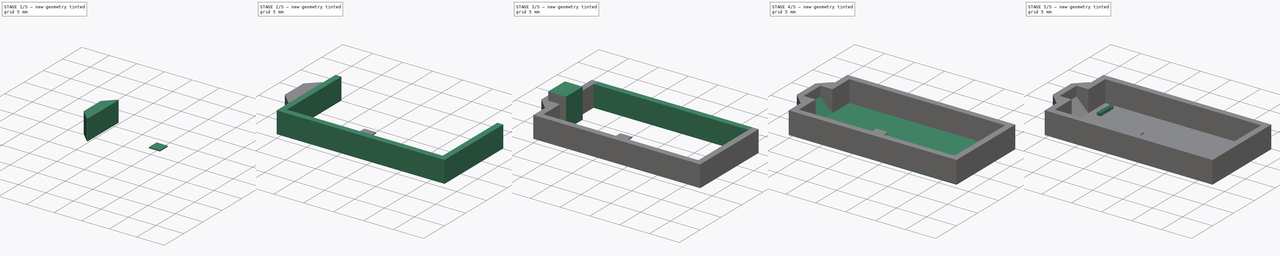
[diagram: build sequence overview — one tinted view per stage of 5, left to right]
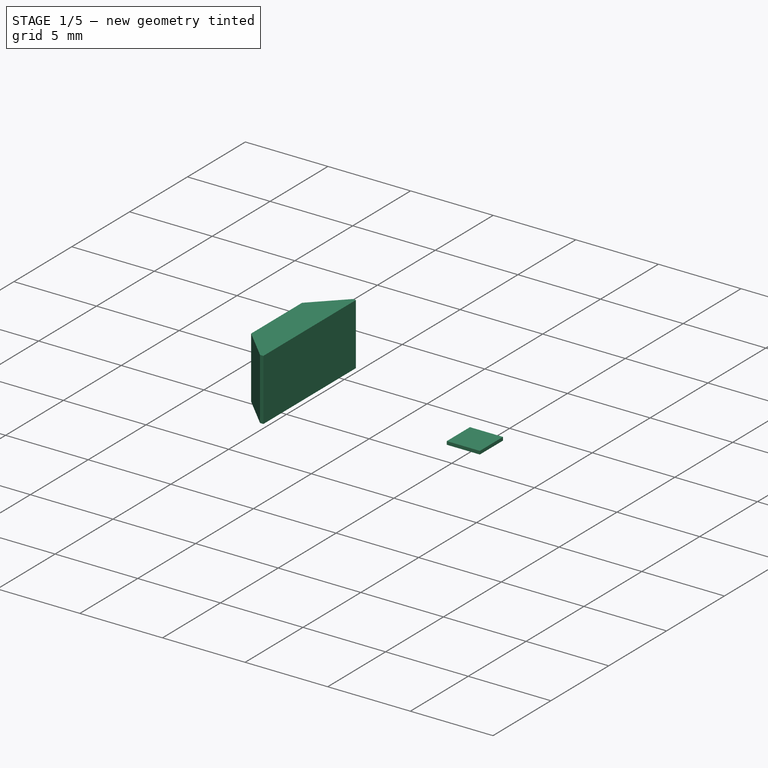
[diagram: stage 1 of 5 — iso view after this stage's code; geometry added in this stage tinted green]
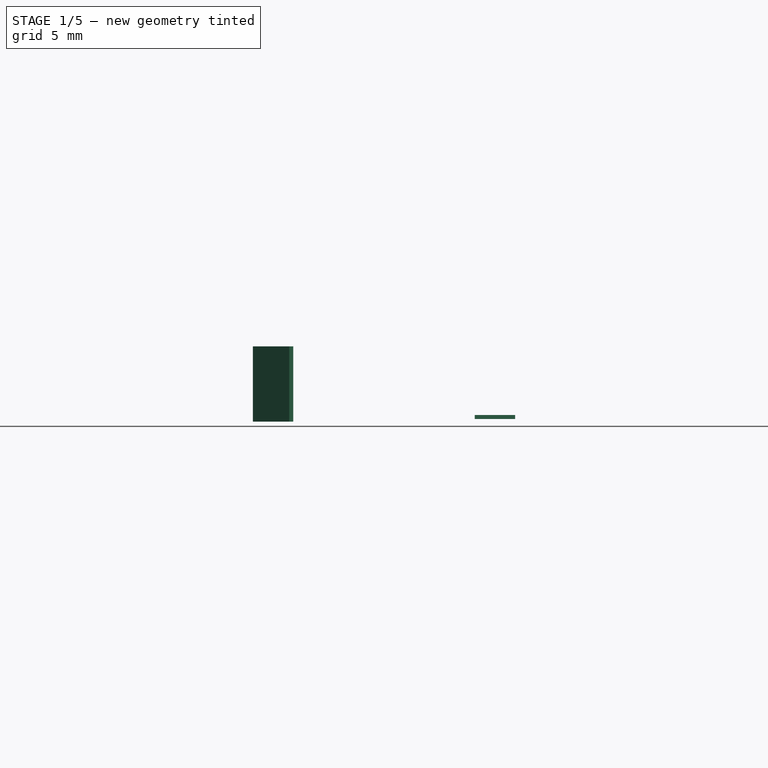
[diagram: stage 1 of 5 — front view after this stage's code; geometry added in this stage tinted green]
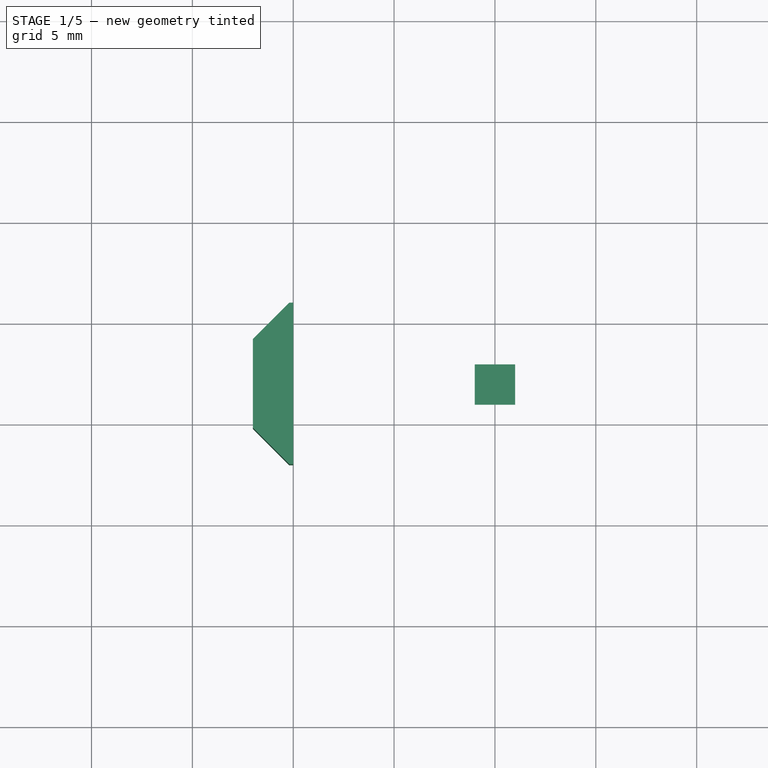
[diagram: stage 1 of 5 — top view after this stage's code; geometry added in this stage tinted green]
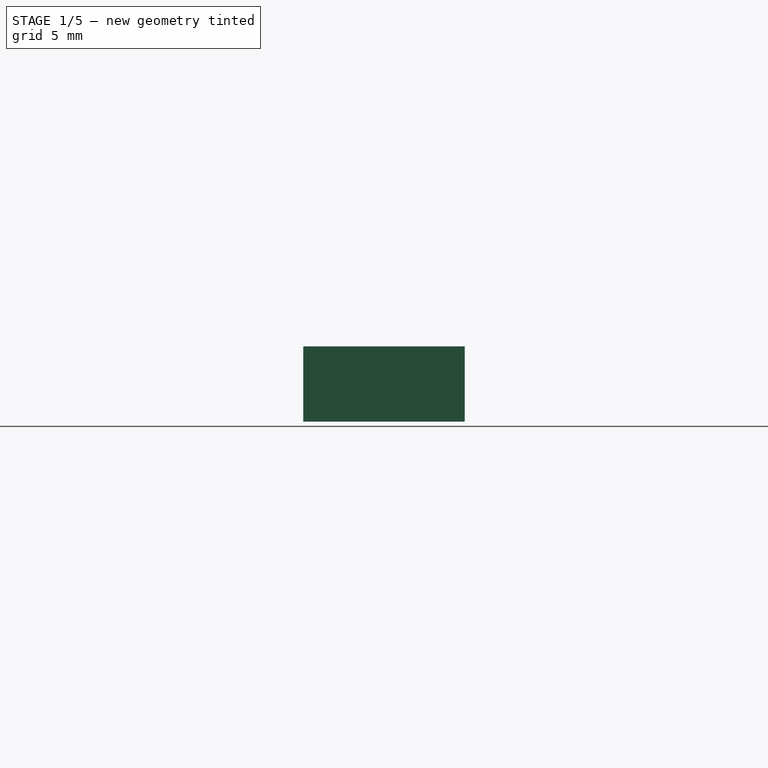
[diagram: stage 1 of 5 — right view after this stage's code; geometry added in this stage tinted green]
FCSTD DOCUMENT  (FreeCAD 0.16R6706 (Git))
Label: Maskless_Small_WithWalls_FreeCAD_Template_v3
License: All rights reserved
LicenseURL: http://en.wikipedia.org/wiki/All_rights_reserved
objects: Sketcher::SketchObject×5, PartDesign::Pad×5, Part::MultiFuse×4, Part::Box×3, Part::Chamfer×2, Part::Part2DObjectPython×1, Part::Extrusion×1, Part::Cut×1
note: 27 computed .brp shape members not serialized (recipe doc carries the construction recipe); baked Part::Feature solids carry a one-line shape summary decoded from their .brp

FEATURE [Part::Box] Box002  label="Cube002"
  Height = 3.725
  Length = 2
  Placement = pos=(-2,3,0) rot=(0,0,1;0rad)
  Width = 8
FEATURE [Part::Chamfer] Chamfer001
  Base = -> Box002
  Edges = 2 edges r=1.8: [Edge1,Edge3]
FEATURE [PartDesign::Pad] Pad  label="Padded Design"
  Length = 0.2
  Length2 = 100
  Placement = pos=(0,0,0.125) rot=(0,0,1;0rad)
  Sketch = -> Sketch007
  Type = 0
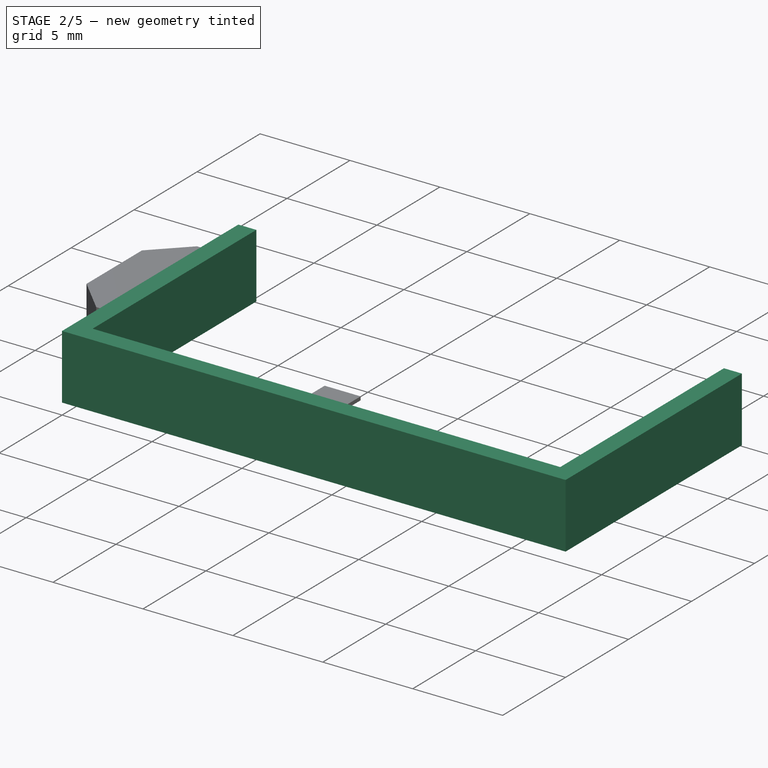
[diagram: stage 2 of 5 — iso view after this stage's code; geometry added in this stage tinted green]
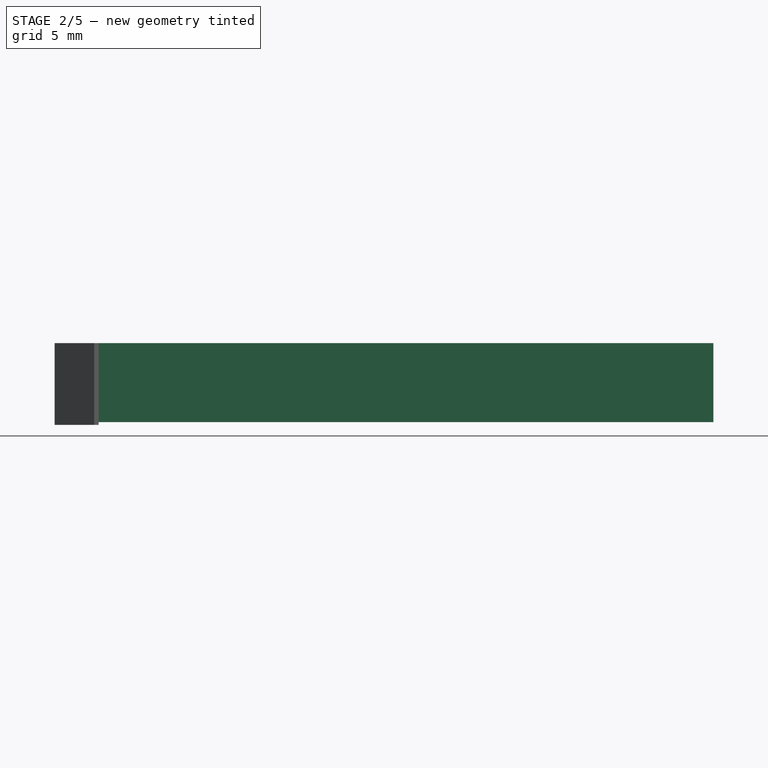
[diagram: stage 2 of 5 — front view after this stage's code; geometry added in this stage tinted green]
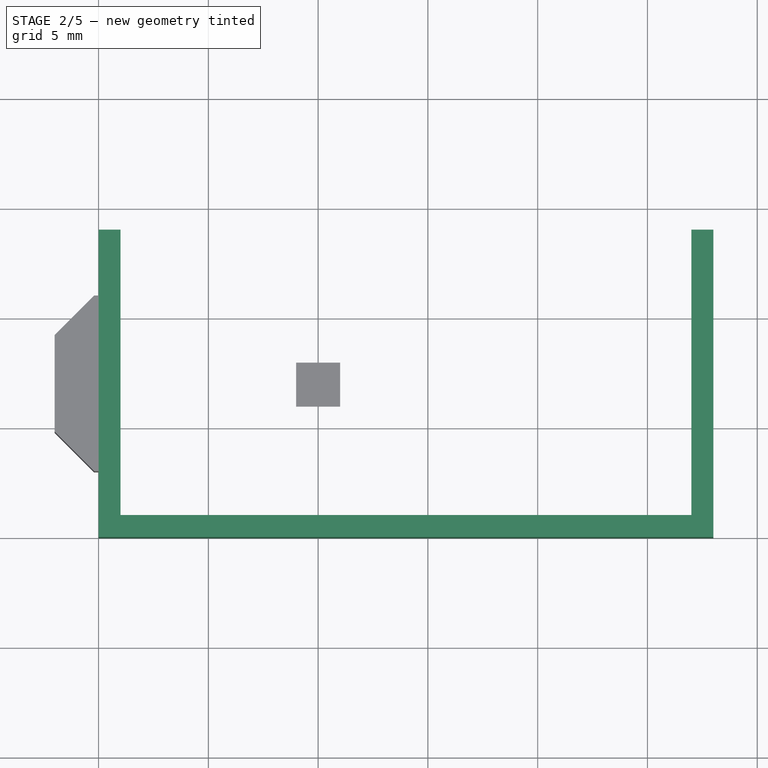
[diagram: stage 2 of 5 — top view after this stage's code; geometry added in this stage tinted green]
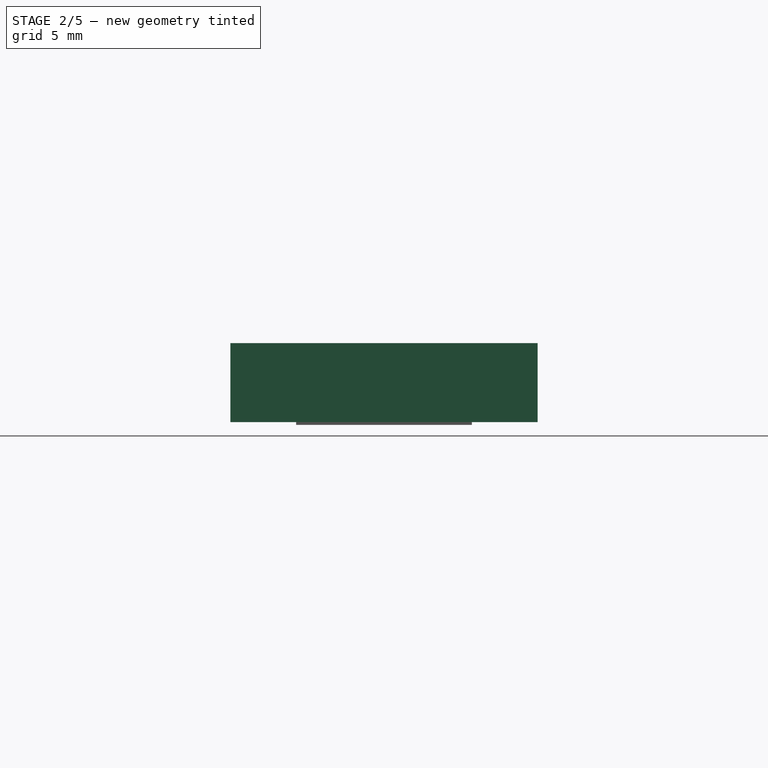
[diagram: stage 2 of 5 — right view after this stage's code; geometry added in this stage tinted green]
FEATURE [PartDesign::Pad] Pad004
  Length = 3.6
  Length2 = 100
  Placement = pos=(0,0,0.125) rot=(0,0,1;0rad)
  Sketch = -> Sketch004
  Type = 0
FEATURE [PartDesign::Pad] Pad005
  Length = 3.6
  Length2 = 100
  Placement = pos=(0,0,0.125) rot=(0,0,1;0rad)
  Sketch = -> Sketch005
  Type = 0
FEATURE [PartDesign::Pad] Pad006
  Length = 3.6
  Length2 = 100
  Placement = pos=(0,0,0.125) rot=(0,0,1;0rad)
  Sketch = -> Sketch006
  Type = 0
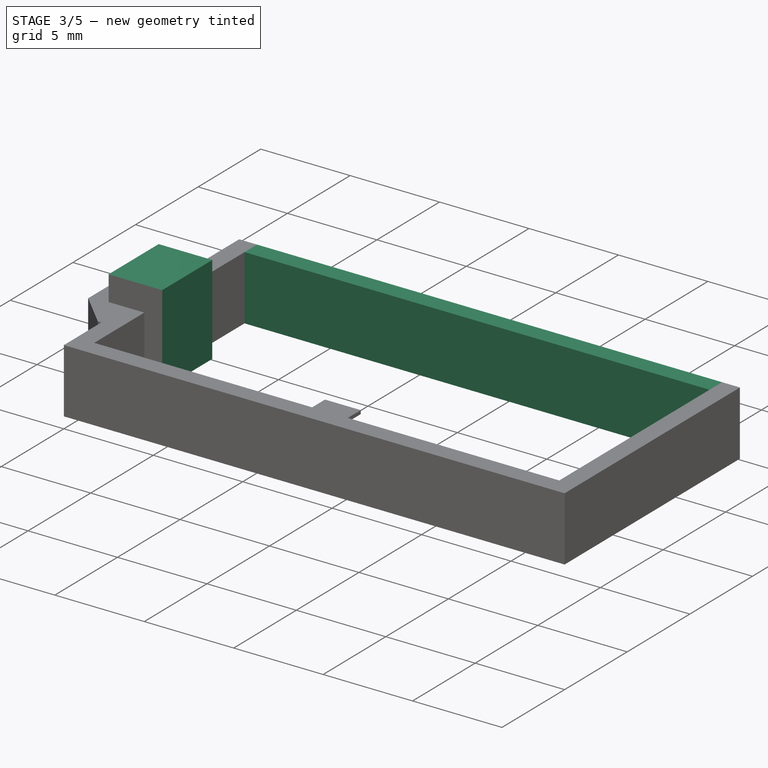
[diagram: stage 3 of 5 — iso view after this stage's code; geometry added in this stage tinted green]
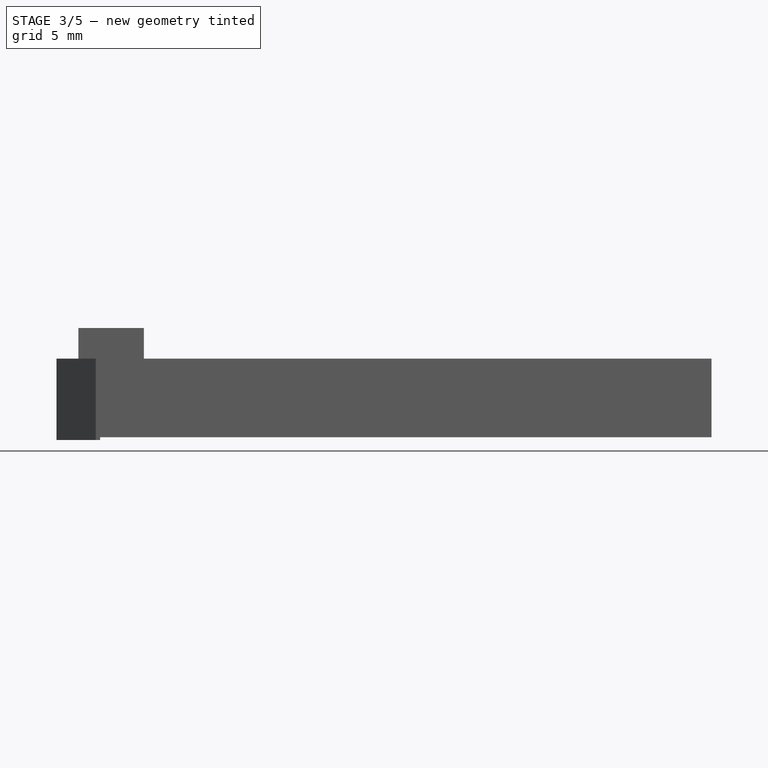
[diagram: stage 3 of 5 — front view after this stage's code; geometry added in this stage tinted green]
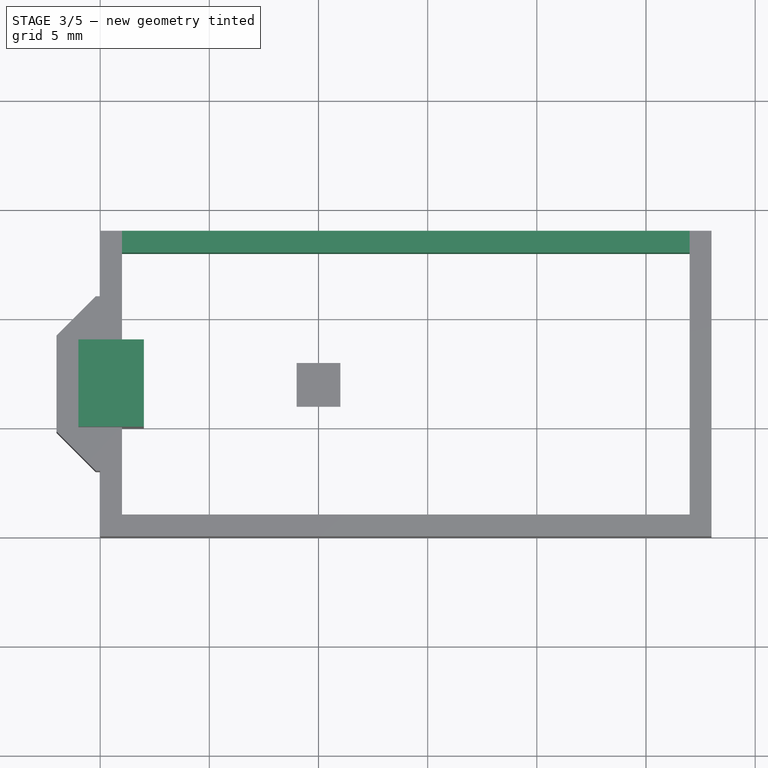
[diagram: stage 3 of 5 — top view after this stage's code; geometry added in this stage tinted green]
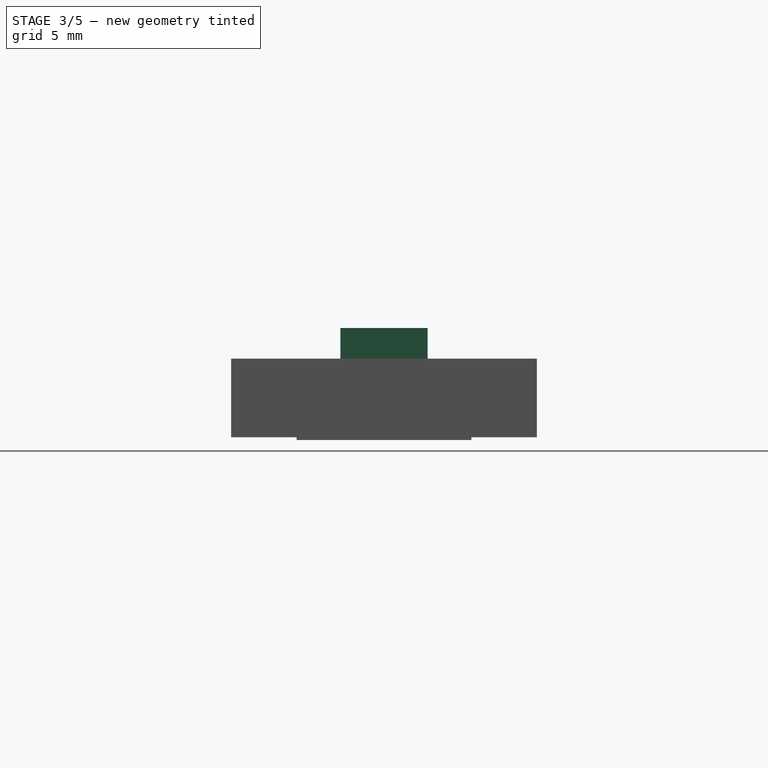
[diagram: stage 3 of 5 — right view after this stage's code; geometry added in this stage tinted green]
FEATURE [Sketcher::SketchObject] Sketch003
  Placement = pos=(0,0,0.125) rot=(0,0,1;0rad)
  sketch-geometry (4):
    g0: LineSegment StartX=0 StartY=13 StartZ=0 EndX=28 EndY=13 EndZ=0
    g1: LineSegment StartX=28 StartY=13 StartZ=0 EndX=28 EndY=14 EndZ=0
    g2: LineSegment StartX=28 StartY=14 StartZ=0 EndX=0 EndY=14 EndZ=0
    g3: LineSegment StartX=0 StartY=14 StartZ=0 EndX=0 EndY=13 EndZ=0
  constraints (12):
    c: Coincident(g0,g1)
    c: Coincident(g1,g2)
    c: Coincident(g2,g3)
    c: Coincident(g3,g0)
    c: Horizontal(g0)
    c: Horizontal(g2)
    c: Vertical(g1)
    c: Vertical(g3)
    c: PointOnObject(g0,g-2)
    c: Distance(g3) = 1
    c: Distance(g0) = 28
    c: DistanceY(g2) = 14
FEATURE [Sketcher::SketchObject] Sketch004
  Placement = pos=(0,0,0.125) rot=(0,0,1;0rad)
  sketch-geometry (4):
    g0: LineSegment StartX=0 StartY=0 StartZ=0 EndX=1 EndY=0 EndZ=0
    g1: LineSegment StartX=1 StartY=0 StartZ=0 EndX=1 EndY=14 EndZ=0
    g2: LineSegment StartX=1 StartY=14 StartZ=0 EndX=0 EndY=14 EndZ=0
    g3: LineSegment StartX=0 StartY=14 StartZ=0 EndX=0 EndY=0 EndZ=0
  constraints (12):
    c: Coincident(g0,g1)
    c: Horizontal(g0)
    c: Horizontal(g2)
    c: Vertical(g1)
    c: PointOnObject(g0,g-2)
    c: Coincident(g1,g2)
    c: DistanceX(g-1,g2) = 0
    c: Coincident(g3,g2)
    c: Coincident(g3,g0)
    c: DistanceY(g2) = 14
    c: DistanceY(g0) = 0
    c: DistanceX(g0,g0) = 1
FEATURE [Sketcher::SketchObject] Sketch005
  Placement = pos=(0,0,0.125) rot=(0,0,1;0rad)
  sketch-geometry (4):
    g0: LineSegment StartX=0 StartY=1 StartZ=0 EndX=28 EndY=1 EndZ=0
    g1: LineSegment StartX=28 StartY=0 StartZ=0 EndX=0 EndY=0 EndZ=0
    g2: LineSegment StartX=0 StartY=0 StartZ=0 EndX=0 EndY=1 EndZ=0
    g3: LineSegment StartX=28 StartY=0 StartZ=0 EndX=28 EndY=1 EndZ=0
  constraints (12):
    c: Coincident(g1,g2)
    c: Coincident(g2,g0)
    c: Horizontal(g0)
    c: Horizontal(g1)
    c: Vertical(g2)
    c: Distance(g2) = 1
    c: DistanceX(g0) = 28
    c: Coincident(g3,g1)
    c: Coincident(g3,g0)
    c: Vertical(g3)
    c: DistanceX(g0) = 0
    c: DistanceY(g1) = 0
FEATURE [Sketcher::SketchObject] Sketch006
  Placement = pos=(0,0,0.125) rot=(0,0,1;0rad)
  sketch-geometry (4):
    g0: LineSegment StartX=28 StartY=0 StartZ=0 EndX=27 EndY=0 EndZ=0
    g1: LineSegment StartX=27 StartY=0 StartZ=0 EndX=27 EndY=14 EndZ=0
    g2: LineSegment StartX=27 StartY=14 StartZ=0 EndX=28 EndY=14 EndZ=0
    g3: LineSegment StartX=28 StartY=14 StartZ=0 EndX=28 EndY=0 EndZ=0
  constraints (12):
    c: Coincident(g0,g1)
    c: Coincident(g1,g2)
    c: Coincident(g2,g3)
    c: Coincident(g3,g0)
    c: Horizontal(g0)
    c: Horizontal(g2)
    c: Vertical(g1)
    c: Vertical(g3)
    c: DistanceY(g0) = 0
    c: Distance(g0) = 1
    c: DistanceX(g0) = 28
    c: DistanceY(g2) = 14
FEATURE [PartDesign::Pad] Pad003
  Length = 3.6
  Length2 = 100
  Placement = pos=(0,0,0.125) rot=(0,0,1;0rad)
  Sketch = -> Sketch003
  Type = 0
FEATURE [Part::MultiFuse] Fusion001
  Shapes = -> [Pad003,Pad004,Pad005,Pad006]
FEATURE [Part::Box] Box001  label="Cube001"
  Height = 5
  Length = 3
  Placement = pos=(-1,5,0.125) rot=(0,0,1;0rad)
  Width = 4
FEATURE [Part::MultiFuse] Fusion
  Shapes = -> [Fusion001,Chamfer001]
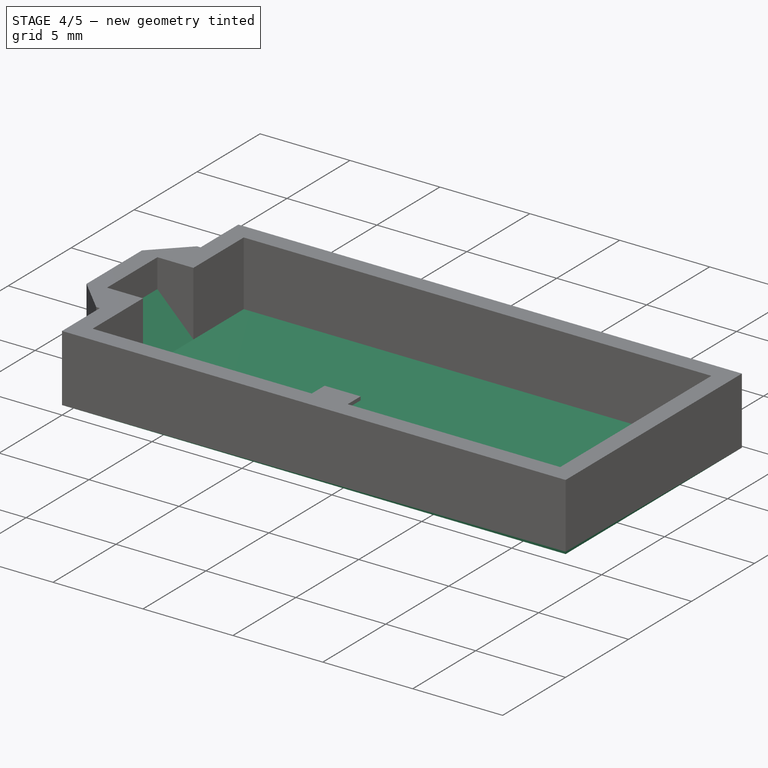
[diagram: stage 4 of 5 — iso view after this stage's code; geometry added in this stage tinted green]
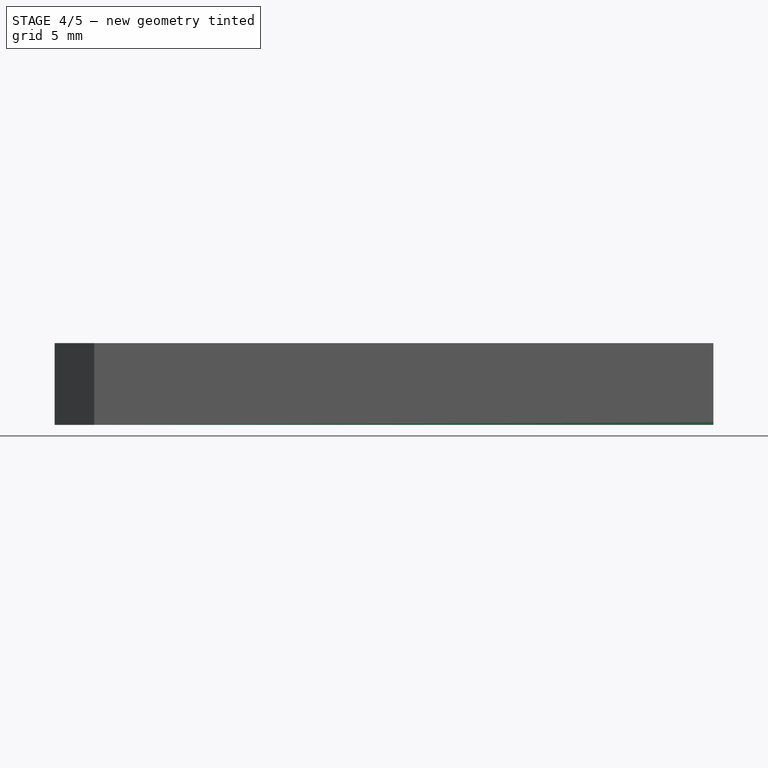
[diagram: stage 4 of 5 — front view after this stage's code; geometry added in this stage tinted green]
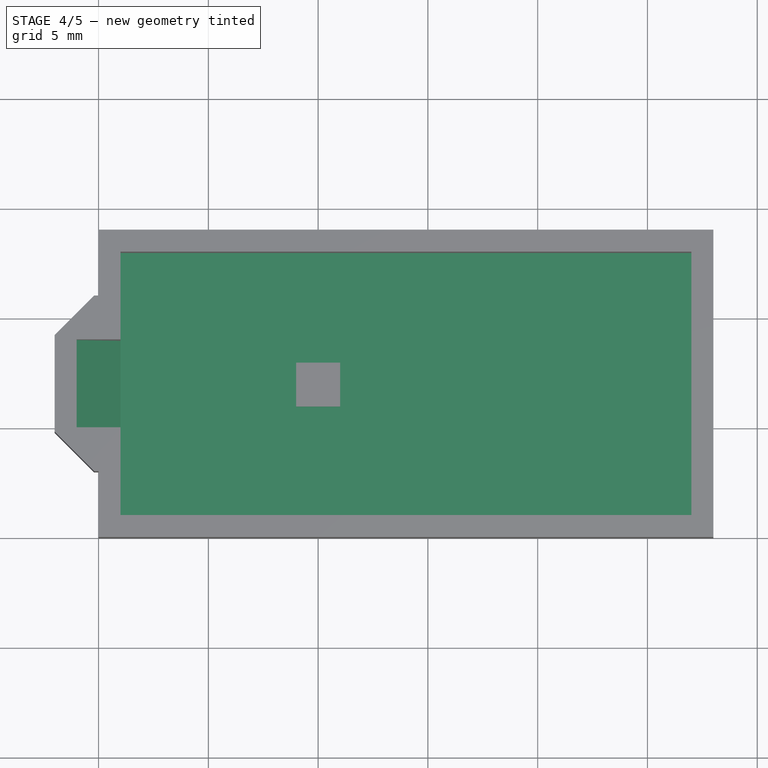
[diagram: stage 4 of 5 — top view after this stage's code; geometry added in this stage tinted green]
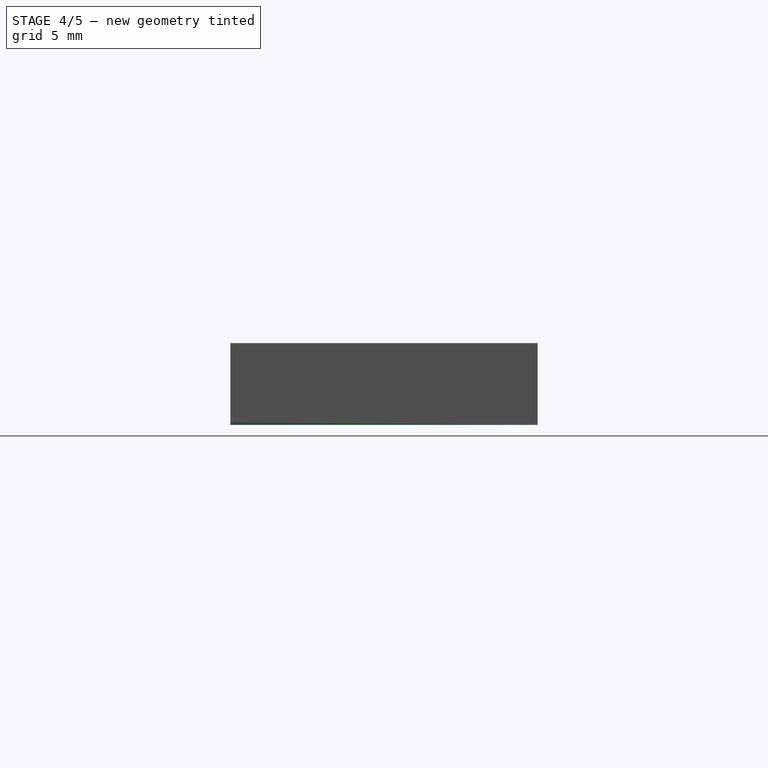
[diagram: stage 4 of 5 — right view after this stage's code; geometry added in this stage tinted green]
FEATURE [Part::Box] Box  label="Base"
  Height = 0.125
  Length = 28
  Width = 14
FEATURE [Part::Chamfer] Chamfer
  Base = -> Box001
  Edges = 1 edges r=2: [Edge4]
FEATURE [Part::Cut] Cut  label="Walls"
  Base = -> Fusion
  Tool = -> Chamfer
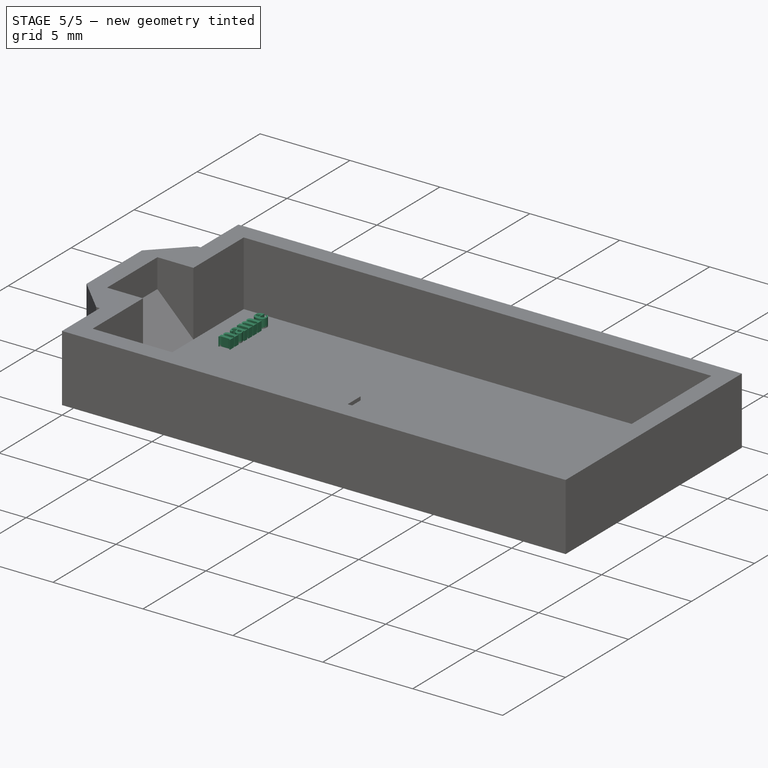
[diagram: stage 5 of 5 — iso view after this stage's code; geometry added in this stage tinted green]
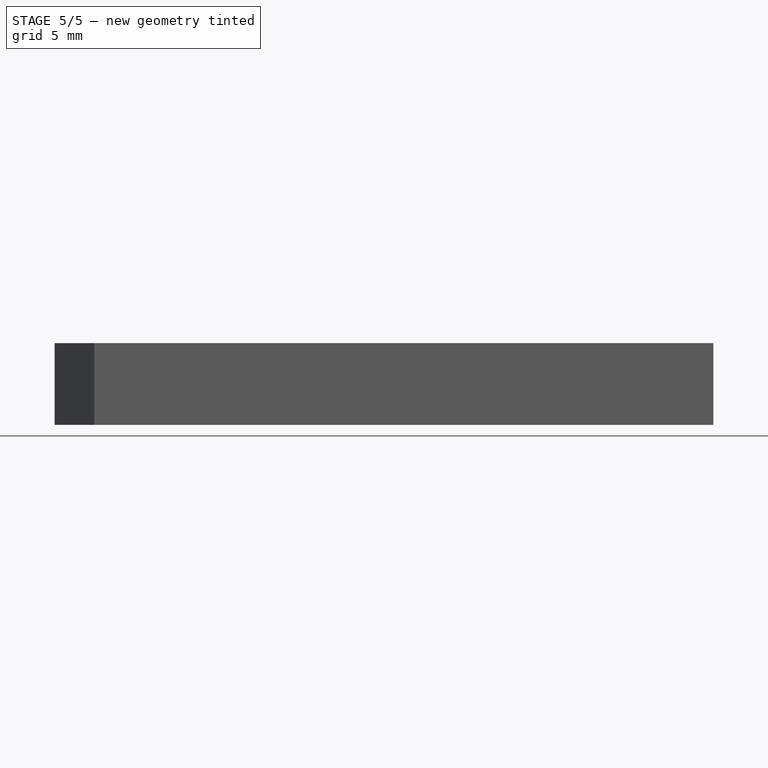
[diagram: stage 5 of 5 — front view after this stage's code; geometry added in this stage tinted green]
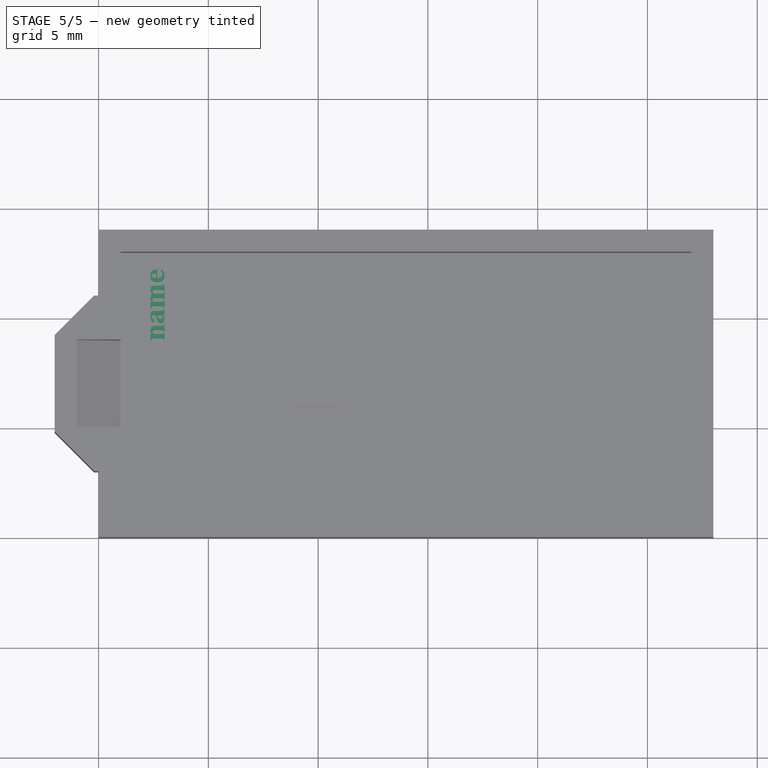
[diagram: stage 5 of 5 — top view after this stage's code; geometry added in this stage tinted green]
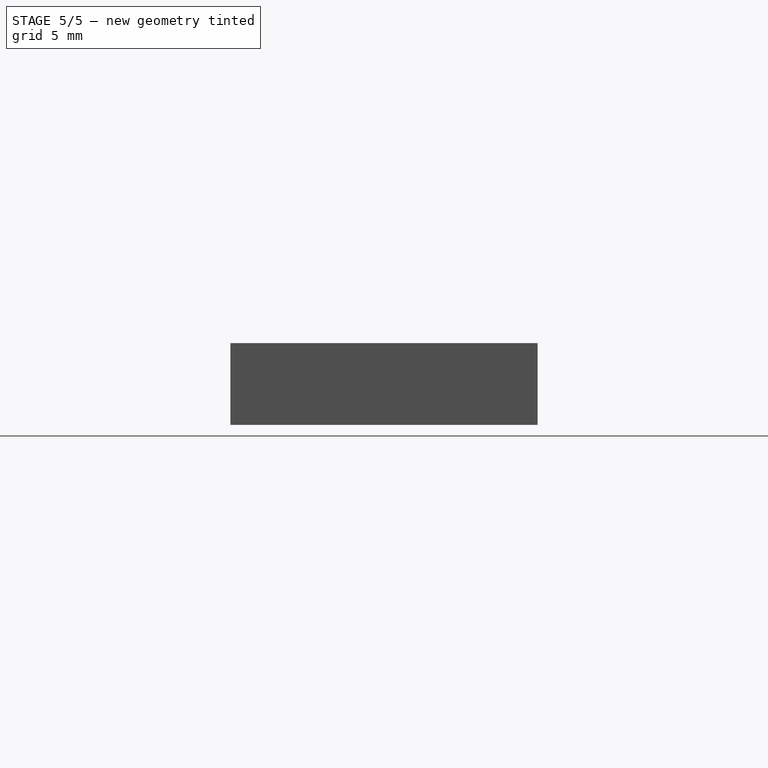
[diagram: stage 5 of 5 — right view after this stage's code; geometry added in this stage tinted green]
FEATURE [Sketcher::SketchObject] Sketch007  label="Sketch - customize in Part Design"
  Placement = pos=(0,0,0.125) rot=(0,0,1;0rad)
  sketch-geometry (4):
    g0: LineSegment StartX=9 StartY=8 StartZ=0 EndX=11 EndY=8 EndZ=0
    g1: LineSegment StartX=11 StartY=8 StartZ=0 EndX=11 EndY=6 EndZ=0
    g2: LineSegment StartX=11 StartY=6 StartZ=0 EndX=9 EndY=6 EndZ=0
    g3: LineSegment StartX=9 StartY=6 StartZ=0 EndX=9 EndY=8 EndZ=0
  constraints (12):
    c: Coincident(g0,g1)
    c: Coincident(g1,g2)
    c: Coincident(g2,g3)
    c: Coincident(g3,g0)
    c: Horizontal(g0)
    c: Horizontal(g2)
    c: Vertical(g1)
    c: Vertical(g3)
    c: Equal(g2,g3)
    c: Distance(g3) = 2
    c: DistanceY(g2) = 6
    c: DistanceX(g2) = 9
FEATURE [Part::Part2DObjectPython] ShapeString001  label="Sample name - edit "String""  # Draft 2D object (typed FeaturePython)
  FontFile = <userpath>/ownCloud/3D Print Files/Standard_Prints/Eiffel_Tower/SLA Optimized (Form 1+)/CAMBRIAB.TTF
  Placement = pos=(3,9,0.125) rot=(0,0,1;1.5708rad)
  Size = 1
  String = name
  Tracking = 0
FEATURE [Part::Extrusion] Extrude001  label="Sample name"
  Base = -> ShapeString001
  Dir = (0,0,0.5)
  Solid = false
FEATURE [Part::MultiFuse] Fusion024  label="Base and Walls - do not edit"
  Shapes = -> [Box,Cut]
FEATURE [Part::MultiFuse] Fusion025  label="Fused part for export"
  Shapes = -> [Pad,Fusion024,Extrude001]
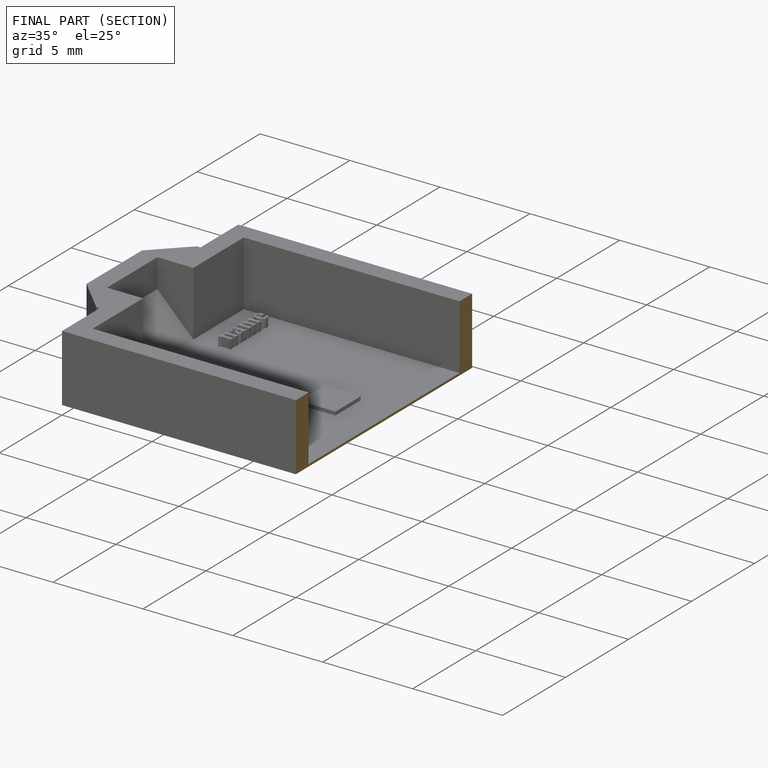
[diagram: finished part — half-section view (interior)]
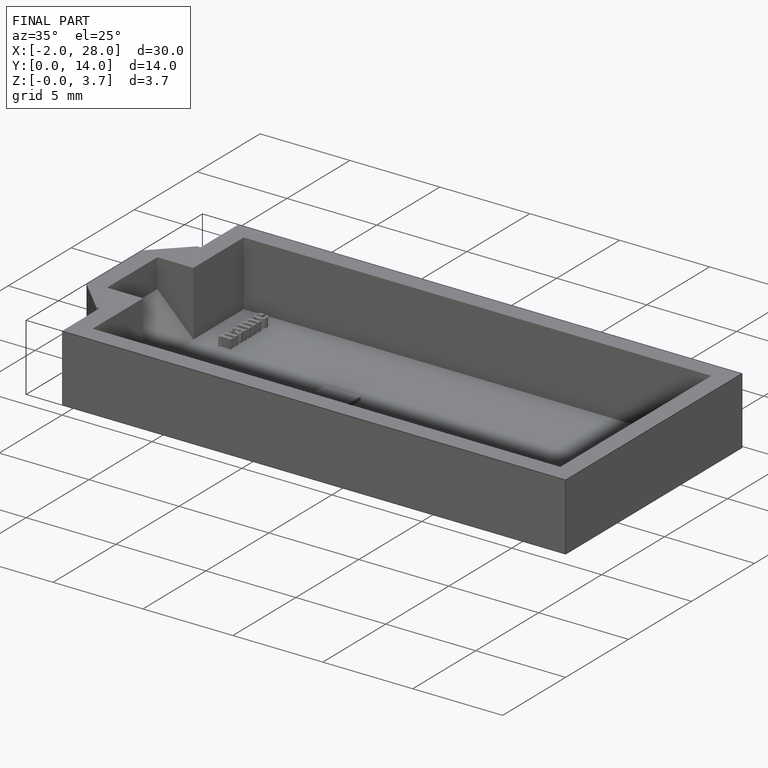
[diagram: finished part — iso view with bounding-box wireframe]
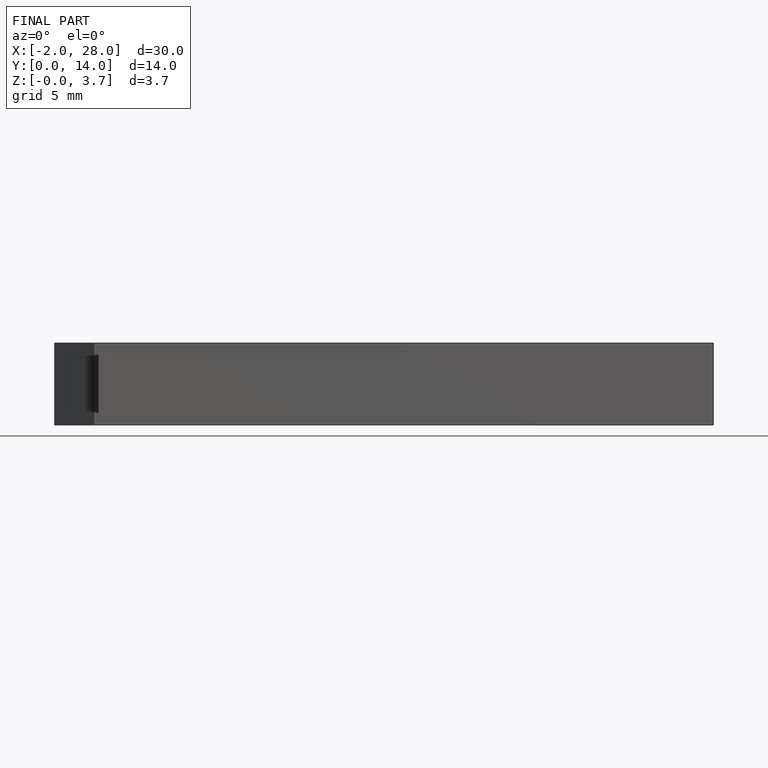
[diagram: finished part — front view with bounding-box wireframe]
